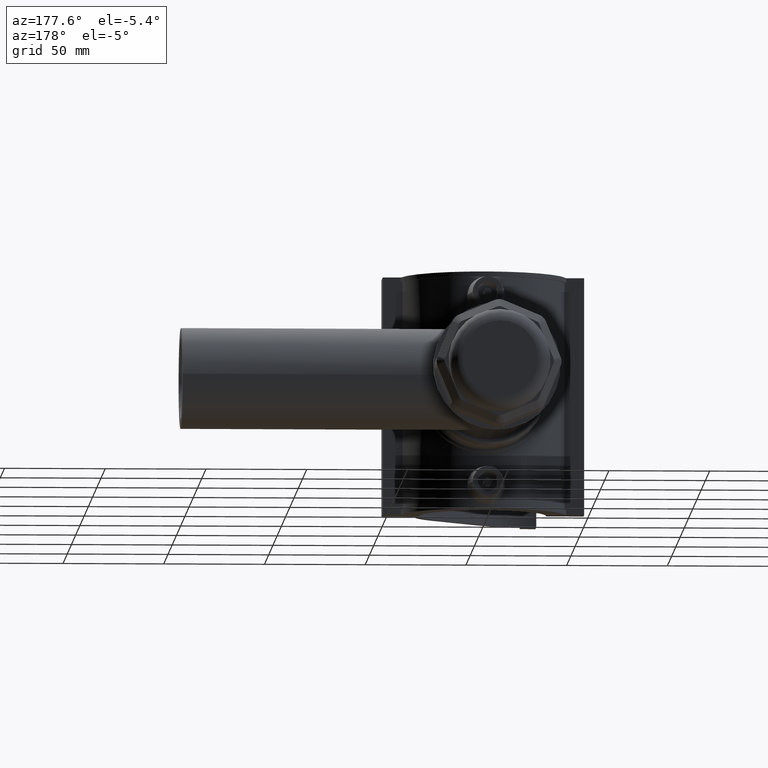
[diagram: clean part render]
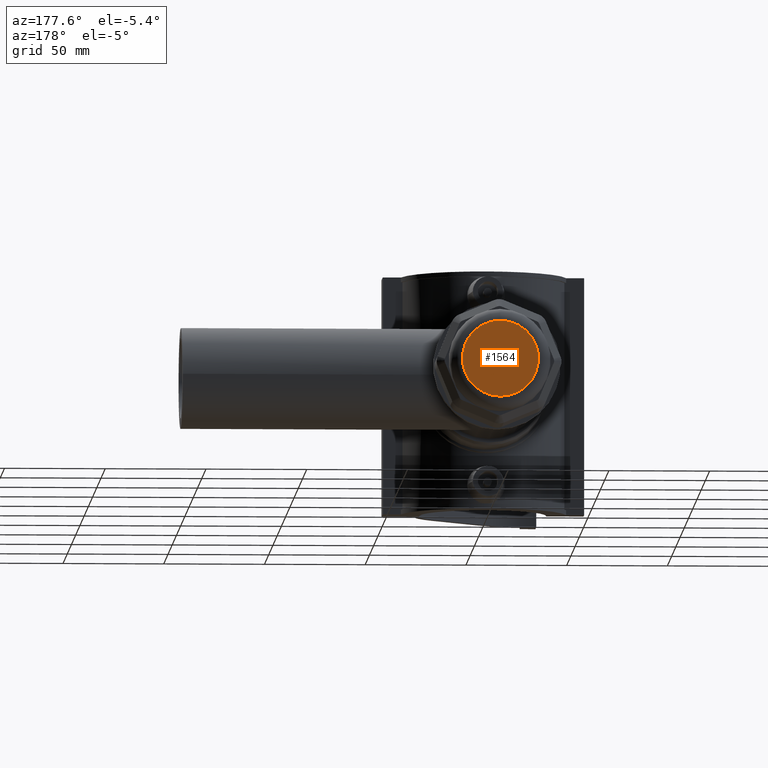
[diagram: same view with one face highlighted and labeled with its STEP entity id]
A machine part, auxiliary view. The second image highlights one B-rep face of the part: STEP entity #1564.
In plain terms, the highlighted planar face has unit normal (0, 1, 0).
Its self-contained STEP definition (entity closure, byte-faithful):
#408=FACE_OUTER_BOUND('',#521,.T.);
#521=EDGE_LOOP('',(#1175));
#637=CIRCLE('',#1696,18.9);
#733=VERTEX_POINT('',#2720);
#904=EDGE_CURVE('',#733,#733,#637,.T.);
#1175=ORIENTED_EDGE('',*,*,#904,.F.);
#1488=PLANE('',#1698);
#1564=ADVANCED_FACE('',(#408),#1488,.T.);
#1696=AXIS2_PLACEMENT_3D('',#2721,#1977,#1978);
#1698=AXIS2_PLACEMENT_3D('',#2723,#1981,#1982);
#1977=DIRECTION('center_axis',(0.,-1.,-3.06161699786838E-16));
#1978=DIRECTION('ref_axis',(6.12323399573677E-17,3.06161699786838E-16,-1.));
#1981=DIRECTION('center_axis',(0.,1.,3.06161699786838E-16));
#1982=DIRECTION('ref_axis',(0.,0.,1.));
#2720=CARTESIAN_POINT('',(-3.47187367558275E-15,208.5,18.9000000000001));
#2721=CARTESIAN_POINT('Origin',(0.,208.5,5.41906208622704E-14));
#2723=CARTESIAN_POINT('Origin',(0.,208.5,5.41906208622704E-14));